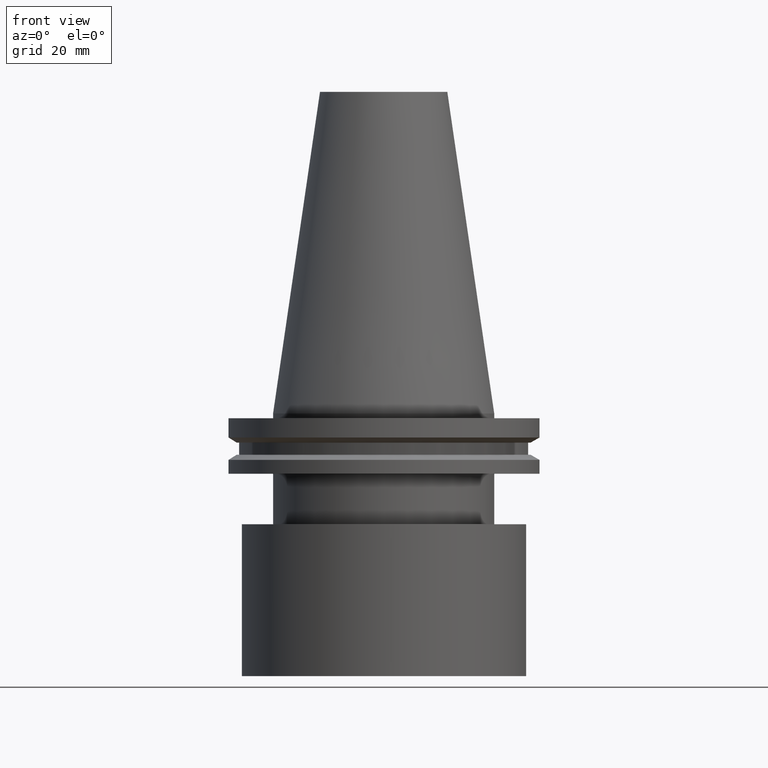
[diagram: clean part render]
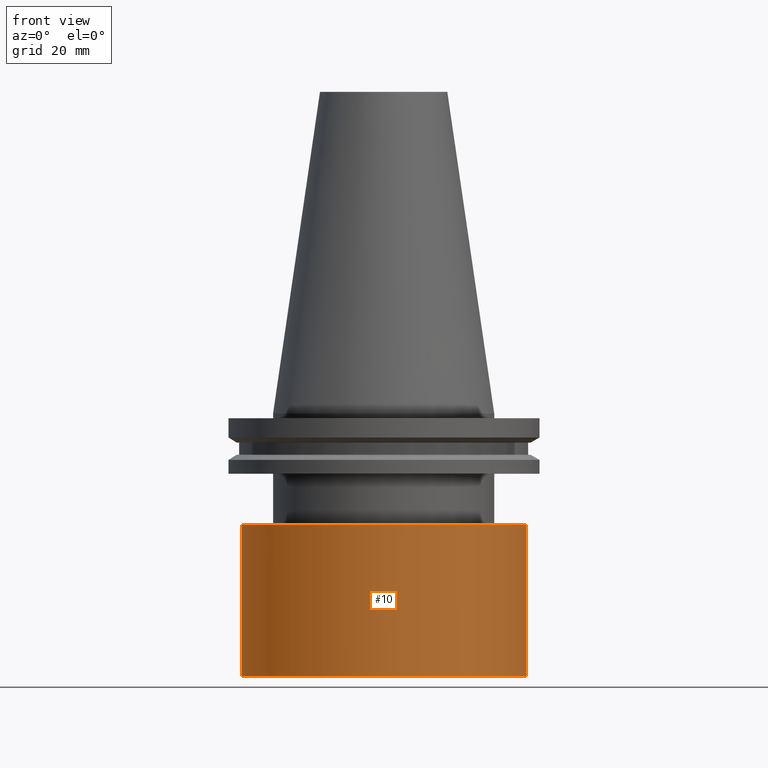
[diagram: same view with one face highlighted and labeled with its STEP entity id]
A machine part, front view. The second image highlights one B-rep face of the part: STEP entity #10.
In plain terms, the highlighted cylindrical surface (bore or boss wall) has radius 45 mm, axis along (-0, -0, 1).
Its self-contained STEP definition (entity closure, byte-faithful):
#10 = ADVANCED_FACE ( 'NONE', ( #154, #388 ), #146, .T. ) ;
#54 = DIRECTION ( 'NONE',  ( 1.000000000000000000, 0.000000000000000000, 0.000000000000000000 ) ) ;
#57 = CARTESIAN_POINT ( 'NONE',  ( 45.00000000000000000, 0.000000000000000000, -83.00000000000001421 ) ) ;
#60 = EDGE_CURVE ( 'NONE', #303, #303, #159, .T. ) ;
#85 = DIRECTION ( 'NONE',  ( -0.000000000000000000, -0.000000000000000000, 1.000000000000000000 ) ) ;
#105 = CIRCLE ( 'NONE', #166, 45.00000000000000000 ) ;
#143 = CARTESIAN_POINT ( 'NONE',  ( 0.000000000000000000, 0.000000000000000000, -35.00000000000000000 ) ) ;
#146 = CYLINDRICAL_SURFACE ( 'NONE', #392, 45.00000000000000000 ) ;
#154 = FACE_OUTER_BOUND ( 'NONE', #262, .T. ) ;
#155 = EDGE_CURVE ( 'NONE', #380, #380, #105, .T. ) ;
#159 = CIRCLE ( 'NONE', #226, 45.00000000000000000 ) ;
#166 = AXIS2_PLACEMENT_3D ( 'NONE', #237, #353, #328 ) ;
#213 = CARTESIAN_POINT ( 'NONE',  ( 45.00000000000000000, 0.000000000000000000, -35.00000000000000000 ) ) ;
#226 = AXIS2_PLACEMENT_3D ( 'NONE', #143, #85, #54 ) ;
#229 = ORIENTED_EDGE ( 'NONE', *, *, #155, .T. ) ;
#237 = CARTESIAN_POINT ( 'NONE',  ( 0.000000000000000000, 0.000000000000000000, -83.00000000000001421 ) ) ;
#262 = EDGE_LOOP ( 'NONE', ( #348 ) ) ;
#298 = CARTESIAN_POINT ( 'NONE',  ( 0.000000000000000000, 0.000000000000000000, 0.000000000000000000 ) ) ;
#302 = DIRECTION ( 'NONE',  ( -0.000000000000000000, -0.000000000000000000, 1.000000000000000000 ) ) ;
#303 = VERTEX_POINT ( 'NONE', #213 ) ;
#328 = DIRECTION ( 'NONE',  ( 1.000000000000000000, 0.000000000000000000, 0.000000000000000000 ) ) ;
#348 = ORIENTED_EDGE ( 'NONE', *, *, #60, .F. ) ;
#353 = DIRECTION ( 'NONE',  ( -0.000000000000000000, -0.000000000000000000, 1.000000000000000000 ) ) ;
#358 = DIRECTION ( 'NONE',  ( 1.000000000000000000, 0.000000000000000000, 0.000000000000000000 ) ) ;
#373 = EDGE_LOOP ( 'NONE', ( #229 ) ) ;
#380 = VERTEX_POINT ( 'NONE', #57 ) ;
#388 = FACE_OUTER_BOUND ( 'NONE', #373, .T. ) ;
#392 = AXIS2_PLACEMENT_3D ( 'NONE', #298, #302, #358 ) ;